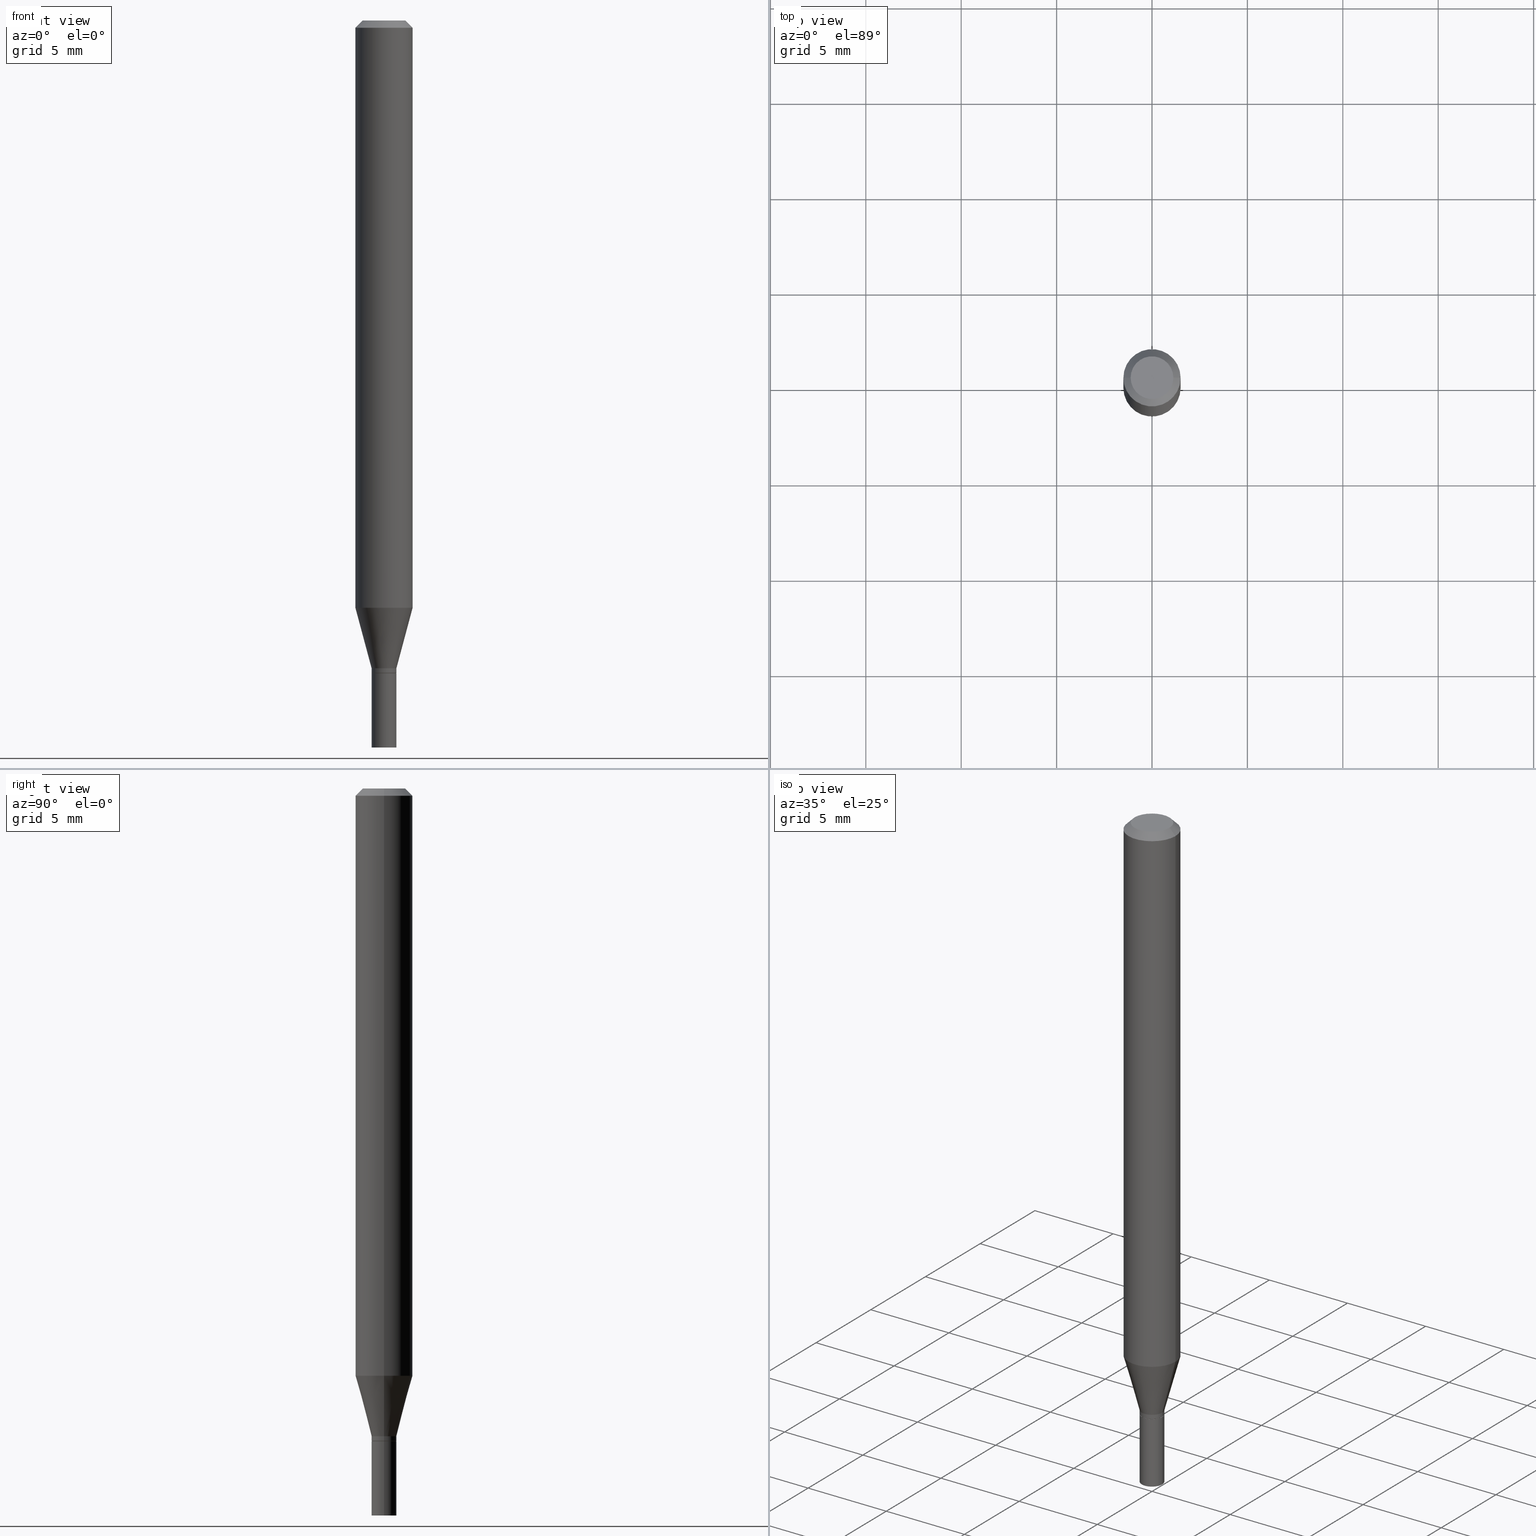
[diagram: canonical four-view strip — front | top / right | iso, engineering-drawing reading convention]
A machine part, canonical four-view strip (front | top / right | iso — engineering-drawing reading convention). The complete STEP part file that produces these views, byte-faithful:
ISO-10303-21;
HEADER;
FILE_DESCRIPTION (( 'STEP AP203' ),
    '1' );
FILE_NAME ('05066.STEP',
    '2024-03-14T17:41:15',
    ( '' ),
    ( '' ),
    'SwSTEP 2.0',
    'SolidWorks 2023',
    '' );
FILE_SCHEMA (( 'CONFIG_CONTROL_DESIGN' ));
ENDSEC;

DATA;
#1 = DIRECTION ( 'NONE',  ( 0.000000000000000000, 0.000000000000000000, 1.000000000000000000 ) ) ;
#2 = APPROVAL ( #341, 'UNSPECIFIED' ) ;
#3 = DIRECTION ( 'NONE',  ( -2.445468806185136597E-29, 3.491481338843145583E-15, 1.000000000000000000 ) ) ;
#4 = FACE_OUTER_BOUND ( 'NONE', #79, .T. ) ;
#5 = ORIENTED_EDGE ( 'NONE', *, *, #268, .F. ) ;
#6 =( NAMED_UNIT ( * ) SI_UNIT ( $, .STERADIAN. ) SOLID_ANGLE_UNIT ( ) );
#7 = CIRCLE ( 'NONE', #172, 0.05904999999999999832 ) ;
#8 = AXIS2_PLACEMENT_3D ( 'NONE', #177, #38, #175 ) ;
#9 = APPLICATION_CONTEXT ( 'configuration controlled 3d designs of mechanical parts and assemblies' ) ;
#10 =( NAMED_UNIT ( * ) PLANE_ANGLE_UNIT ( ) SI_UNIT ( $, .RADIAN. ) );
#11 = ORIENTED_EDGE ( 'NONE', *, *, #208, .T. ) ;
#12 = PERSON_AND_ORGANIZATION ( #344, #453 ) ;
#13 = DIRECTION ( 'NONE',  ( -2.445468806185136877E-29, 3.491481338843145188E-15, 1.000000000000000000 ) ) ;
#14 = SECURITY_CLASSIFICATION_LEVEL ( 'unclassified' ) ;
#15 = DIRECTION ( 'NONE',  ( 1.000000000000000000, -6.982962677686282488E-15, 0.000000000000000000 ) ) ;
#16 = APPLICATION_CONTEXT ( 'configuration controlled 3d designs of mechanical parts and assemblies' ) ;
#17 = AXIS2_PLACEMENT_3D ( 'NONE', #168, #306, #445 ) ;
#18 = DIRECTION ( 'NONE',  ( -2.445468806185136597E-29, 3.491481338843145583E-15, 1.000000000000000000 ) ) ;
#19 = ADVANCED_FACE ( 'NONE', ( #161 ), #59, .T. ) ;
#20 = VERTEX_POINT ( 'NONE', #257 ) ;
#21 = CYLINDRICAL_SURFACE ( 'NONE', #17, 0.02560000000000000470 ) ;
#22 = PLANE ( 'NONE',  #362 ) ;
#23 = AXIS2_PLACEMENT_3D ( 'NONE', #192, #299, #393 ) ;
#24 = CARTESIAN_POINT ( 'NONE',  ( 0.02559999999999991796, -4.845128653912631909E-15, -1.336500000000000021 ) ) ;
#25 = ORIENTED_EDGE ( 'NONE', *, *, #351, .T. ) ;
#26 = EDGE_CURVE ( 'NONE', #319, #460, #316, .T. ) ;
#27 = FACE_OUTER_BOUND ( 'NONE', #143, .T. ) ;
#28 = ORIENTED_EDGE ( 'NONE', *, *, #170, .T. ) ;
#29 = DIRECTION ( 'NONE',  ( -2.438088387897960049E-29, 3.491481338843145188E-15, 1.000000000000000000 ) ) ;
#30 = ORIENTED_EDGE ( 'NONE', *, *, #174, .T. ) ;
#31 = MANIFOLD_SOLID_BREP ( 'Body-Move/Copy2[2]', #157 ) ;
#32 = EDGE_CURVE ( 'NONE', #357, #259, #375, .T. ) ;
#33 = DESIGN_CONTEXT ( 'detailed design', #16, 'design' ) ;
#34 = CARTESIAN_POINT ( 'NONE',  ( 0.000000000000000000, 0.000000000000000000, 0.000000000000000000 ) ) ;
#35 = CIRCLE ( 'NONE', #214, 0.05904999999999999832 ) ;
#36 = EDGE_CURVE ( 'NONE', #390, #363, #266, .T. ) ;
#37 = EDGE_LOOP ( 'NONE', ( #420, #100 ) ) ;
#38 = DIRECTION ( 'NONE',  ( -2.438088387897960049E-29, 3.491481338843145188E-15, 1.000000000000000000 ) ) ;
#39 = DIRECTION ( 'NONE',  ( 1.000000000000000000, -6.982962677686263555E-15, 0.000000000000000000 ) ) ;
#40 = VERTEX_POINT ( 'NONE', #153 ) ;
#41 = APPROVAL ( #223, 'UNSPECIFIED' ) ;
#42 = AXIS2_PLACEMENT_3D ( 'NONE', #389, #71, #111 ) ;
#43 = APPLICATION_PROTOCOL_DEFINITION ( 'international standard', 'config_control_design', 1994, #16 ) ;
#44 = AXIS2_PLACEMENT_3D ( 'NONE', #293, #75, #189 ) ;
#45 = ADVANCED_BREP_SHAPE_REPRESENTATION ( '05066', ( #343, #31, #282 ), #190 ) ;
#46 = CARTESIAN_POINT ( 'NONE',  ( 3.668203209277704895E-29, -5.237222008264718177E-15, -1.500000000000000222 ) ) ;
#47 = ORIENTED_EDGE ( 'NONE', *, *, #73, .T. ) ;
#48 = DATE_AND_TIME ( #399, #421 ) ;
#49 = ORIENTED_EDGE ( 'NONE', *, *, #449, .F. ) ;
#50 = CIRCLE ( 'NONE', #308, 0.02559999999999992490 ) ;
#51 = DATE_TIME_ROLE ( 'classification_date' ) ;
#52 = LINE ( 'NONE', #301, #367 ) ;
#53 = EDGE_CURVE ( 'NONE', #84, #40, #7, .T. ) ;
#54 = SHAPE_DEFINITION_REPRESENTATION ( #373, #45 ) ;
#55 = CARTESIAN_POINT ( 'NONE',  ( 0.000000000000000000, 0.000000000000000000, 0.000000000000000000 ) ) ;
#56 = LOCAL_TIME ( 13, 41, 15.00000000000000000, #296 ) ;
#57 = ADVANCED_FACE ( 'NONE', ( #429 ), #254, .T. ) ;
#58 = DIRECTION ( 'NONE',  ( -1.000000000000000000, 6.982962677686265922E-15, -4.876176775795935793E-29 ) ) ;
#59 = CONICAL_SURFACE ( 'NONE', #23, 0.02559999999999991796, 0.2617993877991497409 ) ;
#60 = VECTOR ( 'NONE', #358, 39.37007874015748143 ) ;
#61 = FACE_OUTER_BOUND ( 'NONE', #433, .T. ) ;
#62 = CARTESIAN_POINT ( 'NONE',  ( -0.05904999999999999832, -1.721859827584131788E-15, -0.01499999999999999944 ) ) ;
#63 = CC_DESIGN_APPROVAL ( #2, ( #203 ) ) ;
#64 = DIRECTION ( 'NONE',  ( 2.445468806185136597E-29, -3.491481338843145583E-15, -1.000000000000000000 ) ) ;
#65 = ADVANCED_FACE ( 'NONE', ( #369 ), #227, .T. ) ;
#66 = CIRCLE ( 'NONE', #382, 0.04404999999999999888 ) ;
#67 = CARTESIAN_POINT ( 'NONE',  ( -0.02560000000000000470, -4.787351875153921393E-15, -1.500000000000000222 ) ) ;
#68 = EDGE_LOOP ( 'NONE', ( #25, #74 ) ) ;
#69 = DIRECTION ( 'NONE',  ( -2.445468806185136877E-29, 3.491481338843145188E-15, 1.000000000000000000 ) ) ;
#70 = LINE ( 'NONE', #276, #60 ) ;
#71 = DIRECTION ( 'NONE',  ( -2.445468806185136597E-29, 3.491481338843145583E-15, 1.000000000000000000 ) ) ;
#72 = ORIENTED_EDGE ( 'NONE', *, *, #32, .T. ) ;
#73 = EDGE_CURVE ( 'NONE', #460, #84, #466, .T. ) ;
#74 = ORIENTED_EDGE ( 'NONE', *, *, #304, .T. ) ;
#75 = DIRECTION ( 'NONE',  ( -2.445468806185136597E-29, 3.491481338843145583E-15, 1.000000000000000000 ) ) ;
#76 = DIRECTION ( 'NONE',  ( 1.000000000000000000, -6.982962677686282488E-15, 0.000000000000000000 ) ) ;
#77 = MECHANICAL_CONTEXT ( 'NONE', #9, 'mechanical' ) ;
#78 = AXIS2_PLACEMENT_3D ( 'NONE', #234, #377, #202 ) ;
#79 = EDGE_LOOP ( 'NONE', ( #314, #463, #49, #5 ) ) ;
#80 = CARTESIAN_POINT ( 'NONE',  ( 0.02560000000000000470, -5.415985852813487242E-15, -1.500000000000000222 ) ) ;
#81 = DIRECTION ( 'NONE',  ( -2.445468806185136597E-29, 3.491481338843145583E-15, 1.000000000000000000 ) ) ;
#82 = PERSON_AND_ORGANIZATION ( #344, #453 ) ;
#83 = DIRECTION ( 'NONE',  ( 2.445468806185136597E-29, -3.491481338843145583E-15, -1.000000000000000000 ) ) ;
#84 = VERTEX_POINT ( 'NONE', #62 ) ;
#85 = APPROVAL_ROLE ( '' ) ;
#86 = ORIENTED_EDGE ( 'NONE', *, *, #36, .F. ) ;
#87 = CONICAL_SURFACE ( 'NONE', #465, 0.02510000000000000078, 0.7853981633974739252 ) ;
#88 = CALENDAR_DATE ( 2024, 14, 3 ) ;
#89 = CARTESIAN_POINT ( 'NONE',  ( 3.292823747528287150E-29, -4.701279622752296071E-15, -1.346500000000000252 ) ) ;
#90 = ADVANCED_FACE ( 'NONE', ( #171 ), #444, .T. ) ;
#91 = LINE ( 'NONE', #443, #158 ) ;
#92 = LOCAL_TIME ( 13, 41, 15.00000000000000000, #197 ) ;
#93 = DIRECTION ( 'NONE',  ( 1.000000000000000000, -6.982962677686263555E-15, 0.000000000000000000 ) ) ;
#94 = CIRCLE ( 'NONE', #132, 0.02510000000000000078 ) ;
#95 = DIRECTION ( 'NONE',  ( 1.000000000000000000, -6.982962677686266711E-15, 0.000000000000000000 ) ) ;
#96 = CIRCLE ( 'NONE', #195, 0.02560000000000000470 ) ;
#97 = LINE ( 'NONE', #447, #149 ) ;
#98 = CC_DESIGN_PERSON_AND_ORGANIZATION_ASSIGNMENT ( #300, #261, ( #203 ) ) ;
#99 = CARTESIAN_POINT ( 'NONE',  ( 0.02559999999999992490, -4.878297726631642843E-15, -1.346000000000000307 ) ) ;
#100 = ORIENTED_EDGE ( 'NONE', *, *, #106, .T. ) ;
#101 = AXIS2_PLACEMENT_3D ( 'NONE', #267, #413, #93 ) ;
#102 = CONICAL_SURFACE ( 'NONE', #457, 0.02559999999999991796, 0.2617993877991497409 ) ;
#103 = CARTESIAN_POINT ( 'NONE',  ( 0.000000000000000000, 0.000000000000000000, 0.000000000000000000 ) ) ;
#104 = EDGE_CURVE ( 'NONE', #259, #357, #94, .T. ) ;
#105 = EDGE_LOOP ( 'NONE', ( #140, #30, #311, #325 ) ) ;
#106 = EDGE_CURVE ( 'NONE', #264, #145, #239, .T. ) ;
#107 = DIRECTION ( 'NONE',  ( -2.445468806185136597E-29, 3.491481338843145583E-15, 1.000000000000000000 ) ) ;
#108 = ORIENTED_EDGE ( 'NONE', *, *, #423, .T. ) ;
#109 = DIRECTION ( 'NONE',  ( 1.000000000000000000, -6.982962677686266711E-15, 4.876176775795936353E-29 ) ) ;
#110 = ORIENTED_EDGE ( 'NONE', *, *, #448, .F. ) ;
#111 = DIRECTION ( 'NONE',  ( 1.000000000000000000, -6.982962677686263555E-15, 0.000000000000000000 ) ) ;
#112 = ORIENTED_EDGE ( 'NONE', *, *, #106, .F. ) ;
#113 = PERSON_AND_ORGANIZATION ( #344, #453 ) ;
#114 = ORIENTED_EDGE ( 'NONE', *, *, #32, .F. ) ;
#115 = EDGE_CURVE ( 'NONE', #388, #460, #97, .T. ) ;
#116 = CARTESIAN_POINT ( 'NONE',  ( -0.05904999999999999832, -3.810922920551955991E-15, -1.211662900486820904 ) ) ;
#117 = ORIENTED_EDGE ( 'NONE', *, *, #410, .F. ) ;
#118 =( LENGTH_UNIT ( ) NAMED_UNIT ( * ) SI_UNIT ( $, .METRE. ) );
#119 = AXIS2_PLACEMENT_3D ( 'NONE', #103, #107, #144 ) ;
#120 = PERSON_AND_ORGANIZATION_ROLE ( 'creator' ) ;
#121 = CARTESIAN_POINT ( 'NONE',  ( 2.963083826752325828E-29, -4.230498406018294695E-15, -1.211662900486820904 ) ) ;
#122 = ORIENTED_EDGE ( 'NONE', *, *, #268, .T. ) ;
#123 = APPROVAL_DATE_TIME ( #404, #349 ) ;
#124 = DIRECTION ( 'NONE',  ( 1.000000000000000000, -6.982962677686249356E-15, 0.000000000000000000 ) ) ;
#125 = PRODUCT_DEFINITION ( 'UNKNOWN', '', #312, #33 ) ;
#126 = VECTOR ( 'NONE', #321, 39.37007874015748143 ) ;
#127 = CIRCLE ( 'NONE', #289, 0.02560000000000000470 ) ;
#128 = DIRECTION ( 'NONE',  ( 1.000000000000000000, -6.982962677686282488E-15, 0.000000000000000000 ) ) ;
#129 = FACE_OUTER_BOUND ( 'NONE', #68, .T. ) ;
#130 = AXIS2_PLACEMENT_3D ( 'NONE', #152, #218, #326 ) ;
#131 = DIRECTION ( 'NONE',  ( -2.445468806185136597E-29, 3.491481338843145583E-15, 1.000000000000000000 ) ) ;
#132 = AXIS2_PLACEMENT_3D ( 'NONE', #134, #194, #272 ) ;
#133 = EDGE_CURVE ( 'NONE', #363, #390, #50, .T. ) ;
#134 = CARTESIAN_POINT ( 'NONE',  ( 3.292823747528287150E-29, -4.701279622752296071E-15, -1.346500000000000252 ) ) ;
#135 = ADVANCED_FACE ( 'NONE', ( #378 ), #22, .F. ) ;
#136 = CYLINDRICAL_SURFACE ( 'NONE', #119, 0.02559999999999992143 ) ;
#137 = ORIENTED_EDGE ( 'NONE', *, *, #104, .T. ) ;
#138 = CARTESIAN_POINT ( 'NONE',  ( 2.963083826752325828E-29, -4.230498406018294695E-15, -1.211662900486820904 ) ) ;
#139 = CC_DESIGN_DATE_AND_TIME_ASSIGNMENT ( #402, #51, ( #203 ) ) ;
#140 = ORIENTED_EDGE ( 'NONE', *, *, #410, .T. ) ;
#141 = AXIS2_PLACEMENT_3D ( 'NONE', #283, #29, #244 ) ;
#142 = DIRECTION ( 'NONE',  ( -1.000000000000000000, 6.982962677686266711E-15, 0.000000000000000000 ) ) ;
#143 = EDGE_LOOP ( 'NONE', ( #250, #432, #287, #281 ) ) ;
#144 = DIRECTION ( 'NONE',  ( 1.000000000000000000, -6.982962677686266711E-15, 4.876176775795936353E-29 ) ) ;
#145 = VERTEX_POINT ( 'NONE', #407 ) ;
#146 = ORIENTED_EDGE ( 'NONE', *, *, #406, .T. ) ;
#147 = DIRECTION ( 'NONE',  ( 1.000000000000000000, -6.982962677686265922E-15, 4.819687581474398999E-29 ) ) ;
#148 = ORIENTED_EDGE ( 'NONE', *, *, #351, .F. ) ;
#149 = VECTOR ( 'NONE', #408, 39.37007874015748143 ) ;
#150 = ADVANCED_FACE ( 'NONE', ( #61 ), #87, .T. ) ;
#151 = CARTESIAN_POINT ( 'NONE',  ( 0.02510000000000000078, -4.876551985962222129E-15, -1.346500000000000252 ) ) ;
#152 = CARTESIAN_POINT ( 'NONE',  ( 3.268369059466435044E-29, -4.666364809363864422E-15, -1.336500000000000021 ) ) ;
#153 = CARTESIAN_POINT ( 'NONE',  ( 0.05904999999999999832, -4.647161662000212105E-16, -0.01499999999999999944 ) ) ;
#154 = APPROVAL_DATE_TIME ( #331, #41 ) ;
#155 = EDGE_LOOP ( 'NONE', ( #186, #243, #146, #201 ) ) ;
#156 = APPROVAL_ROLE ( '' ) ;
#157 = CLOSED_SHELL ( 'NONE', ( #425, #206, #286, #57, #19, #196, #397, #65, #229, #317, #150, #361 ) ) ;
#158 = VECTOR ( 'NONE', #305, 39.37007874015748143 ) ;
#159 = EDGE_LOOP ( 'NONE', ( #427, #386, #383, #112 ) ) ;
#160 = DIRECTION ( 'NONE',  ( 1.000000000000000000, 0.000000000000000000, 0.000000000000000000 ) ) ;
#161 = FACE_OUTER_BOUND ( 'NONE', #458, .T. ) ;
#162 = EDGE_LOOP ( 'NONE', ( #117, #110 ) ) ;
#163 = CARTESIAN_POINT ( 'NONE',  ( 3.268369059466435044E-29, -4.666364809363864422E-15, -1.336500000000000021 ) ) ;
#164 = COORDINATED_UNIVERSAL_TIME_OFFSET ( 5, 0, .BEHIND. ) ;
#165 = CARTESIAN_POINT ( 'NONE',  ( -0.05904999999999999832, 4.195754854663391478E-16, -2.904631170795521892E-30 ) ) ;
#166 = CONICAL_SURFACE ( 'NONE', #240, 0.02510000000000000078, 0.7853981633974739252 ) ;
#167 = DIRECTION ( 'NONE',  ( 1.000000000000000000, -6.982962677686249356E-15, 0.000000000000000000 ) ) ;
#168 = CARTESIAN_POINT ( 'NONE',  ( 0.000000000000000000, 0.000000000000000000, 0.000000000000000000 ) ) ;
#169 = CC_DESIGN_APPROVAL ( #41, ( #125 ) ) ;
#170 = EDGE_CURVE ( 'NONE', #357, #390, #52, .T. ) ;
#171 = FACE_OUTER_BOUND ( 'NONE', #105, .T. ) ;
#172 = AXIS2_PLACEMENT_3D ( 'NONE', #228, #290, #327 ) ;
#173 = CARTESIAN_POINT ( 'NONE',  ( 0.05904999999999999832, -4.574846268510561447E-16, -0.01499999999999999944 ) ) ;
#174 = EDGE_CURVE ( 'NONE', #394, #264, #372, .T. ) ;
#175 = DIRECTION ( 'NONE',  ( 1.000000000000000000, -6.982962677686265922E-15, 4.876176775795935793E-29 ) ) ;
#176 = ORIENTED_EDGE ( 'NONE', *, *, #221, .T. ) ;
#177 = CARTESIAN_POINT ( 'NONE',  ( 3.292823747528287150E-29, -4.701279622752296071E-15, -1.346500000000000252 ) ) ;
#178 = ORIENTED_EDGE ( 'NONE', *, *, #104, .F. ) ;
#179 = AXIS2_PLACEMENT_3D ( 'NONE', #121, #224, #297 ) ;
#180 = AXIS2_PLACEMENT_3D ( 'NONE', #278, #426, #147 ) ;
#181 = DIRECTION ( 'NONE',  ( -2.445468806185136597E-29, 3.491481338843145583E-15, 1.000000000000000000 ) ) ;
#182 = ORIENTED_EDGE ( 'NONE', *, *, #262, .F. ) ;
#183 = CARTESIAN_POINT ( 'NONE',  ( -0.02559999999999992490, -4.517634941728290020E-15, -1.346000000000000307 ) ) ;
#184 = EDGE_LOOP ( 'NONE', ( #182, #148, #11, #333 ) ) ;
#185 = DIRECTION ( 'NONE',  ( -1.000000000000000000, 6.982962677686266711E-15, 0.000000000000000000 ) ) ;
#186 = ORIENTED_EDGE ( 'NONE', *, *, #73, .F. ) ;
#187 = AXIS2_PLACEMENT_3D ( 'NONE', #352, #64, #142 ) ;
#188 = CC_DESIGN_PERSON_AND_ORGANIZATION_ASSIGNMENT ( #230, #265, ( #312 ) ) ;
#189 = DIRECTION ( 'NONE',  ( 1.000000000000000000, -6.982962677686266711E-15, 4.876176775795936353E-29 ) ) ;
#190 =( GEOMETRIC_REPRESENTATION_CONTEXT ( 3 ) GLOBAL_UNCERTAINTY_ASSIGNED_CONTEXT ( ( #320 ) ) GLOBAL_UNIT_ASSIGNED_CONTEXT ( ( #431, #10, #6 ) ) REPRESENTATION_CONTEXT ( 'NONE', 'WORKASPACE' ) );
#191 = DATE_TIME_ROLE ( 'creation_date' ) ;
#192 = CARTESIAN_POINT ( 'NONE',  ( 3.268369059466435044E-29, -4.666364809363864422E-15, -1.336500000000000021 ) ) ;
#193 = APPROVAL_DATE_TIME ( #371, #2 ) ;
#194 = DIRECTION ( 'NONE',  ( -2.445468806185136597E-29, 3.491481338843145583E-15, 1.000000000000000000 ) ) ;
#195 = AXIS2_PLACEMENT_3D ( 'NONE', #46, #332, #39 ) ;
#196 = ADVANCED_FACE ( 'NONE', ( #440 ), #102, .T. ) ;
#197 = COORDINATED_UNIVERSAL_TIME_OFFSET ( 5, 0, .BEHIND. ) ;
#198 = DIRECTION ( 'NONE',  ( -2.445468806185136597E-29, 3.491481338843145583E-15, 1.000000000000000000 ) ) ;
#199 = CARTESIAN_POINT ( 'NONE',  ( 3.268369059466435044E-29, -4.666364809363864422E-15, -1.336500000000000021 ) ) ;
#200 = VECTOR ( 'NONE', #387, 39.37007874015748143 ) ;
#201 = ORIENTED_EDGE ( 'NONE', *, *, #53, .F. ) ;
#202 = DIRECTION ( 'NONE',  ( -1.000000000000000000, 6.982962677686265922E-15, -4.876176775795935793E-29 ) ) ;
#203 = SECURITY_CLASSIFICATION ( '', '', #14 ) ;
#204 = DIRECTION ( 'NONE',  ( -2.445468806185136597E-29, 3.491481338843145583E-15, 1.000000000000000000 ) ) ;
#205 = DIRECTION ( 'NONE',  ( 1.000000000000000000, -6.982962677686273021E-15, 0.000000000000000000 ) ) ;
#206 = ADVANCED_FACE ( 'NONE', ( #405 ), #166, .T. ) ;
#207 = AXIS2_PLACEMENT_3D ( 'NONE', #400, #263, #76 ) ;
#208 = EDGE_CURVE ( 'NONE', #322, #84, #91, .T. ) ;
#209 = CARTESIAN_POINT ( 'NONE',  ( -0.02560000000000000470, -4.787351875153921393E-15, -1.346500000000000252 ) ) ;
#210 = VERTEX_POINT ( 'NONE', #232 ) ;
#211 = LINE ( 'NONE', #24, #434 ) ;
#212 = ORIENTED_EDGE ( 'NONE', *, *, #370, .T. ) ;
#213 = FACE_OUTER_BOUND ( 'NONE', #155, .T. ) ;
#214 = AXIS2_PLACEMENT_3D ( 'NONE', #138, #462, #205 ) ;
#215 = DIRECTION ( 'NONE',  ( 0.7071067811865553443, -7.319954787623282867E-15, -0.7071067811865396902 ) ) ;
#216 = EDGE_LOOP ( 'NONE', ( #137, #28, #455, #359 ) ) ;
#217 = CARTESIAN_POINT ( 'NONE',  ( 3.292823747528287150E-29, -4.701279622752296071E-15, -1.346500000000000252 ) ) ;
#218 = DIRECTION ( 'NONE',  ( -2.445468806185136597E-29, 3.491481338843145583E-15, 1.000000000000000000 ) ) ;
#219 = CARTESIAN_POINT ( 'NONE',  ( 3.291601013125194348E-29, -4.699533882082874567E-15, -1.346000000000000307 ) ) ;
#220 = ORIENTED_EDGE ( 'NONE', *, *, #246, .F. ) ;
#221 = EDGE_CURVE ( 'NONE', #388, #210, #222, .T. ) ;
#222 = CIRCLE ( 'NONE', #411, 0.02559999999999991796 ) ;
#223 = APPROVAL_STATUS ( 'not_yet_approved' ) ;
#224 = DIRECTION ( 'NONE',  ( -2.445468806185136597E-29, 3.491481338843145583E-15, 1.000000000000000000 ) ) ;
#225 = DIRECTION ( 'NONE',  ( 1.000000000000000000, -6.982962677686266711E-15, 4.876176775795936353E-29 ) ) ;
#226 = CALENDAR_DATE ( 2024, 14, 3 ) ;
#227 = CONICAL_SURFACE ( 'NONE', #356, 0.05904999999999999832, 0.7853981633974593812 ) ;
#228 = CARTESIAN_POINT ( 'NONE',  ( 3.668203209277705088E-31, -5.237222008264718399E-17, -0.01499999999999999944 ) ) ;
#229 = ADVANCED_FACE ( 'NONE', ( #129 ), #270, .F. ) ;
#230 = PERSON_AND_ORGANIZATION ( #344, #453 ) ;
#231 = CARTESIAN_POINT ( 'NONE',  ( 3.291601013125194348E-29, -4.699533882082874567E-15, -1.346000000000000307 ) ) ;
#232 = CARTESIAN_POINT ( 'NONE',  ( 0.02559999999999991796, -4.845128653912631909E-15, -1.336500000000000021 ) ) ;
#233 = ADVANCED_FACE ( 'NONE', ( #347 ), #21, .T. ) ;
#234 = CARTESIAN_POINT ( 'NONE',  ( 3.075995059520799729E-16, 0.04404999999999999888, -3.177616157090649282E-16 ) ) ;
#235 = AXIS2_PLACEMENT_3D ( 'NONE', #294, #81, #225 ) ;
#236 = DIRECTION ( 'NONE',  ( 1.000000000000000000, -6.982962677686284854E-15, 0.000000000000000000 ) ) ;
#237 = CARTESIAN_POINT ( 'NONE',  ( 3.292823747528287150E-29, -4.701279622752296071E-15, -1.346500000000000252 ) ) ;
#238 = DIRECTION ( 'NONE',  ( 0.2588190451025210725, 1.565188264969624137E-15, 0.9659258262890682012 ) ) ;
#239 = CIRCLE ( 'NONE', #101, 0.02560000000000000470 ) ;
#240 = AXIS2_PLACEMENT_3D ( 'NONE', #89, #342, #15 ) ;
#241 = ORIENTED_EDGE ( 'NONE', *, *, #391, .F. ) ;
#242 = CARTESIAN_POINT ( 'NONE',  ( -0.02559999999999992143, 1.818989403545850893E-16, -1.259247383105251935E-30 ) ) ;
#243 = ORIENTED_EDGE ( 'NONE', *, *, #309, .T. ) ;
#244 = DIRECTION ( 'NONE',  ( 1.000000000000000000, -6.982962677686265922E-15, 4.876176775795935793E-29 ) ) ;
#245 = ORIENTED_EDGE ( 'NONE', *, *, #36, .T. ) ;
#246 = EDGE_CURVE ( 'NONE', #40, #84, #295, .T. ) ;
#247 = CARTESIAN_POINT ( 'NONE',  ( -0.04404999999999999888, 3.337856159934028715E-16, -3.279237254660510174E-16 ) ) ;
#248 = ORIENTED_EDGE ( 'NONE', *, *, #115, .T. ) ;
#249 = APPLICATION_PROTOCOL_DEFINITION ( 'international standard', 'config_control_design', 1994, #9 ) ;
#250 = ORIENTED_EDGE ( 'NONE', *, *, #304, .F. ) ;
#251 = LENGTH_MEASURE_WITH_UNIT ( LENGTH_MEASURE( 0.02539999999999999897 ), #118 );
#252 = ORIENTED_EDGE ( 'NONE', *, *, #370, .F. ) ;
#253 = CC_DESIGN_PERSON_AND_ORGANIZATION_ASSIGNMENT ( #368, #338, ( #312 ) ) ;
#254 = CYLINDRICAL_SURFACE ( 'NONE', #235, 0.05904999999999999832 ) ;
#255 = VECTOR ( 'NONE', #215, 39.37007874015748143 ) ;
#256 = DIRECTION ( 'NONE',  ( 1.000000000000000000, -6.982962677686263555E-15, 0.000000000000000000 ) ) ;
#257 = CARTESIAN_POINT ( 'NONE',  ( 0.04404999999999999888, -3.798447818264465995E-16, -3.279237254660463336E-16 ) ) ;
#258 = COORDINATED_UNIVERSAL_TIME_OFFSET ( 5, 0, .BEHIND. ) ;
#259 = VERTEX_POINT ( 'NONE', #273 ) ;
#260 = LOCAL_TIME ( 13, 41, 15.00000000000000000, #442 ) ;
#261 = PERSON_AND_ORGANIZATION_ROLE ( 'classification_officer' ) ;
#262 = EDGE_CURVE ( 'NONE', #20, #40, #315, .T. ) ;
#263 = DIRECTION ( 'NONE',  ( -2.445468806185136597E-29, 3.491481338843145583E-15, 1.000000000000000000 ) ) ;
#264 = VERTEX_POINT ( 'NONE', #209 ) ;
#265 = PERSON_AND_ORGANIZATION_ROLE ( 'design_supplier' ) ;
#266 = CIRCLE ( 'NONE', #409, 0.02559999999999992490 ) ;
#267 = CARTESIAN_POINT ( 'NONE',  ( 3.292823747528287150E-29, -4.701279622752296071E-15, -1.346500000000000252 ) ) ;
#268 = EDGE_CURVE ( 'NONE', #363, #210, #70, .T. ) ;
#269 = DIRECTION ( 'NONE',  ( 2.438088387897960049E-29, -3.491481338843145188E-15, -1.000000000000000000 ) ) ;
#270 = PLANE ( 'NONE',  #78 ) ;
#271 = DIRECTION ( 'NONE',  ( 1.000000000000000000, -6.982962677686267499E-15, 4.876176775795935232E-29 ) ) ;
#272 = DIRECTION ( 'NONE',  ( 1.000000000000000000, -6.982962677686282488E-15, 0.000000000000000000 ) ) ;
#273 = CARTESIAN_POINT ( 'NONE',  ( 0.02510000000000000078, -4.876551985962222129E-15, -1.346500000000000252 ) ) ;
#274 = EDGE_CURVE ( 'NONE', #451, #145, #310, .T. ) ;
#275 = ORIENTED_EDGE ( 'NONE', *, *, #449, .T. ) ;
#276 = CARTESIAN_POINT ( 'NONE',  ( 0.02559999999999992143, -1.787638445487678819E-16, 1.248301254603755838E-30 ) ) ;
#277 = ORIENTED_EDGE ( 'NONE', *, *, #115, .F. ) ;
#278 = CARTESIAN_POINT ( 'NONE',  ( 8.019272414352406998E-45, -1.144939568028632061E-30, -3.279237254660487495E-16 ) ) ;
#279 = ORIENTED_EDGE ( 'NONE', *, *, #26, .F. ) ;
#280 = LINE ( 'NONE', #242, #345 ) ;
#281 = ORIENTED_EDGE ( 'NONE', *, *, #208, .F. ) ;
#282 = AXIS2_PLACEMENT_3D ( 'NONE', #365, #1, #160 ) ;
#283 = CARTESIAN_POINT ( 'NONE',  ( 3.576687321579069994E-29, -5.368277968210015545E-15, -1.500000000000000222 ) ) ;
#284 = AXIS2_PLACEMENT_3D ( 'NONE', #55, #204, #271 ) ;
#285 = DIRECTION ( 'NONE',  ( 0.7071067811865656694, -2.468850131082446387E-15, 0.7071067811865294761 ) ) ;
#286 = ADVANCED_FACE ( 'NONE', ( #27 ), #318, .T. ) ;
#287 = ORIENTED_EDGE ( 'NONE', *, *, #246, .T. ) ;
#288 = DIMENSIONAL_EXPONENTS ( 1.000000000000000000, 0.000000000000000000, 0.000000000000000000, 0.000000000000000000, 0.000000000000000000, 0.000000000000000000, 0.000000000000000000 ) ;
#289 = AXIS2_PLACEMENT_3D ( 'NONE', #217, #360, #256 ) ;
#290 = DIRECTION ( 'NONE',  ( -2.445468806185136597E-29, 3.491481338843145583E-15, 1.000000000000000000 ) ) ;
#291 = ORIENTED_EDGE ( 'NONE', *, *, #26, .T. ) ;
#292 = APPROVAL_PERSON_ORGANIZATION ( #298, #349, #435 ) ;
#293 = CARTESIAN_POINT ( 'NONE',  ( 0.000000000000000000, 0.000000000000000000, 0.000000000000000000 ) ) ;
#294 = CARTESIAN_POINT ( 'NONE',  ( 0.000000000000000000, 0.000000000000000000, 0.000000000000000000 ) ) ;
#295 = CIRCLE ( 'NONE', #417, 0.05904999999999999832 ) ;
#296 = COORDINATED_UNIVERSAL_TIME_OFFSET ( 5, 0, .BEHIND. ) ;
#297 = DIRECTION ( 'NONE',  ( 1.000000000000000000, -6.982962677686273021E-15, 0.000000000000000000 ) ) ;
#298 = PERSON_AND_ORGANIZATION ( #344, #453 ) ;
#299 = DIRECTION ( 'NONE',  ( -2.445468806185136597E-29, 3.491481338843145583E-15, 1.000000000000000000 ) ) ;
#300 = PERSON_AND_ORGANIZATION ( #344, #453 ) ;
#301 = CARTESIAN_POINT ( 'NONE',  ( -0.02510000000000000078, -4.522933396076511633E-15, -1.346500000000000252 ) ) ;
#302 = CALENDAR_DATE ( 2024, 14, 3 ) ;
#303 = DIRECTION ( 'NONE',  ( -2.445468806185136877E-29, 3.491481338843145188E-15, 1.000000000000000000 ) ) ;
#304 = EDGE_CURVE ( 'NONE', #20, #322, #328, .T. ) ;
#305 = DIRECTION ( 'NONE',  ( -0.7071067811865553443, 2.468850131082339102E-15, -0.7071067811865396902 ) ) ;
#306 = DIRECTION ( 'NONE',  ( -2.445468806185136597E-29, 3.491481338843145583E-15, 1.000000000000000000 ) ) ;
#307 = DIRECTION ( 'NONE',  ( -2.445468806185136597E-29, 3.491481338843145583E-15, 1.000000000000000000 ) ) ;
#308 = AXIS2_PLACEMENT_3D ( 'NONE', #231, #18, #236 ) ;
#309 = EDGE_CURVE ( 'NONE', #460, #319, #35, .T. ) ;
#310 = LINE ( 'NONE', #313, #200 ) ;
#311 = ORIENTED_EDGE ( 'NONE', *, *, #439, .F. ) ;
#312 = PRODUCT_DEFINITION_FORMATION_WITH_SPECIFIED_SOURCE ( 'ANY', '', #452, .NOT_KNOWN. ) ;
#313 = CARTESIAN_POINT ( 'NONE',  ( 0.02560000000000000470, -1.787638445487684735E-16, 1.248301254603759692E-30 ) ) ;
#314 = ORIENTED_EDGE ( 'NONE', *, *, #133, .T. ) ;
#315 = LINE ( 'NONE', #173, #255 ) ;
#316 = CIRCLE ( 'NONE', #179, 0.05904999999999999832 ) ;
#317 = ADVANCED_FACE ( 'NONE', ( #456 ), #450, .F. ) ;
#318 = CONICAL_SURFACE ( 'NONE', #187, 0.05904999999999999832, 0.7853981633974593812 ) ;
#319 = VERTEX_POINT ( 'NONE', #385 ) ;
#320 = UNCERTAINTY_MEASURE_WITH_UNIT (LENGTH_MEASURE( 1.000000000000000082E-05 ), #431, 'distance_accuracy_value', 'NONE');
#321 = DIRECTION ( 'NONE',  ( -2.445468806185136877E-29, 3.491481338843145188E-15, 1.000000000000000000 ) ) ;
#322 = VERTEX_POINT ( 'NONE', #247 ) ;
#323 = LINE ( 'NONE', #422, #126 ) ;
#324 = CC_DESIGN_SECURITY_CLASSIFICATION ( #203, ( #312 ) ) ;
#325 = ORIENTED_EDGE ( 'NONE', *, *, #274, .F. ) ;
#326 = DIRECTION ( 'NONE',  ( 1.000000000000000000, -6.982962677686249356E-15, 0.000000000000000000 ) ) ;
#327 = DIRECTION ( 'NONE',  ( 1.000000000000000000, -6.982962677686266711E-15, 0.000000000000000000 ) ) ;
#328 = CIRCLE ( 'NONE', #180, 0.04404999999999999888 ) ;
#329 = PERSON_AND_ORGANIZATION ( #344, #453 ) ;
#330 = ORIENTED_EDGE ( 'NONE', *, *, #170, .F. ) ;
#331 = DATE_AND_TIME ( #364, #56 ) ;
#332 = DIRECTION ( 'NONE',  ( -2.445468806185136597E-29, 3.491481338843145583E-15, 1.000000000000000000 ) ) ;
#333 = ORIENTED_EDGE ( 'NONE', *, *, #53, .T. ) ;
#334 = CLOSED_SHELL ( 'NONE', ( #90, #395, #233, #135 ) ) ;
#335 = APPROVAL_STATUS ( 'not_yet_approved' ) ;
#336 = EDGE_LOOP ( 'NONE', ( #178, #114 ) ) ;
#337 = VECTOR ( 'NONE', #285, 39.37007874015748143 ) ;
#338 = PERSON_AND_ORGANIZATION_ROLE ( 'creator' ) ;
#339 = DIRECTION ( 'NONE',  ( -0.7071067811865656694, 7.493145998870420424E-15, 0.7071067811865294761 ) ) ;
#340 = CC_DESIGN_DATE_AND_TIME_ASSIGNMENT ( #48, #191, ( #125 ) ) ;
#341 = APPROVAL_STATUS ( 'not_yet_approved' ) ;
#342 = DIRECTION ( 'NONE',  ( -2.445468806185136597E-29, 3.491481338843145583E-15, 1.000000000000000000 ) ) ;
#343 = MANIFOLD_SOLID_BREP ( 'Body-Move/Copy2[1]', #334 ) ;
#344 = PERSON ( 'UNSPECIFIED', 'UNSPECIFIED', 'UNSPECIFIED', ('UNSPECIFIED'), ('UNSPECIFIED'), ('UNSPECIFIED') ) ;
#345 = VECTOR ( 'NONE', #69, 39.37007874015748143 ) ;
#346 = DIRECTION ( 'NONE',  ( -2.445468806185136597E-29, 3.491481338843145583E-15, 1.000000000000000000 ) ) ;
#347 = FACE_OUTER_BOUND ( 'NONE', #159, .T. ) ;
#348 = CARTESIAN_POINT ( 'NONE',  ( 1.787638445488013838E-16, 0.02559999999999530360, -1.346500000000000252 ) ) ;
#349 = APPROVAL ( #335, 'UNSPECIFIED' ) ;
#350 = DIRECTION ( 'NONE',  ( 1.000000000000000000, -6.982962677686265922E-15, 4.819687581474398999E-29 ) ) ;
#351 = EDGE_CURVE ( 'NONE', #322, #20, #66, .T. ) ;
#352 = CARTESIAN_POINT ( 'NONE',  ( 3.668203209277705088E-31, -5.237222008264718399E-17, -0.01499999999999999944 ) ) ;
#353 = ORIENTED_EDGE ( 'NONE', *, *, #309, .F. ) ;
#354 = PLANE ( 'NONE',  #141 ) ;
#355 = CYLINDRICAL_SURFACE ( 'NONE', #396, 0.05904999999999999832 ) ;
#356 = AXIS2_PLACEMENT_3D ( 'NONE', #366, #83, #185 ) ;
#357 = VERTEX_POINT ( 'NONE', #416 ) ;
#358 = DIRECTION ( 'NONE',  ( -2.445468806185136877E-29, 3.491481338843145188E-15, 1.000000000000000000 ) ) ;
#359 = ORIENTED_EDGE ( 'NONE', *, *, #423, .F. ) ;
#360 = DIRECTION ( 'NONE',  ( -2.445468806185136597E-29, 3.491481338843145583E-15, 1.000000000000000000 ) ) ;
#361 = ADVANCED_FACE ( 'NONE', ( #414 ), #136, .T. ) ;
#362 = AXIS2_PLACEMENT_3D ( 'NONE', #348, #269, #58 ) ;
#363 = VERTEX_POINT ( 'NONE', #99 ) ;
#364 = CALENDAR_DATE ( 2024, 14, 3 ) ;
#365 = CARTESIAN_POINT ( 'NONE',  ( 0.000000000000000000, 0.000000000000000000, 0.000000000000000000 ) ) ;
#366 = CARTESIAN_POINT ( 'NONE',  ( 3.668203209277705088E-31, -5.237222008264718399E-17, -0.01499999999999999944 ) ) ;
#367 = VECTOR ( 'NONE', #339, 39.37007874015748143 ) ;
#368 = PERSON_AND_ORGANIZATION ( #344, #453 ) ;
#369 = FACE_OUTER_BOUND ( 'NONE', #184, .T. ) ;
#370 = EDGE_CURVE ( 'NONE', #210, #319, #211, .T. ) ;
#371 = DATE_AND_TIME ( #226, #260 ) ;
#372 = LINE ( 'NONE', #374, #376 ) ;
#373 = PRODUCT_DEFINITION_SHAPE ( 'NONE', 'NONE',  #125 ) ;
#374 = CARTESIAN_POINT ( 'NONE',  ( -0.02560000000000000470, 1.818989403545856810E-16, -1.259247383105256139E-30 ) ) ;
#375 = CIRCLE ( 'NONE', #207, 0.02510000000000000078 ) ;
#376 = VECTOR ( 'NONE', #13, 39.37007874015748143 ) ;
#377 = DIRECTION ( 'NONE',  ( 2.438088387897960049E-29, -3.491481338843145188E-15, -1.000000000000000000 ) ) ;
#378 = FACE_OUTER_BOUND ( 'NONE', #37, .T. ) ;
#379 = CIRCLE ( 'NONE', #130, 0.02559999999999991796 ) ;
#380 = LINE ( 'NONE', #151, #337 ) ;
#381 = CARTESIAN_POINT ( 'NONE',  ( -0.02559999999999991796, -4.147694394780617933E-15, -1.336500000000000021 ) ) ;
#382 = AXIS2_PLACEMENT_3D ( 'NONE', #459, #419, #350 ) ;
#383 = ORIENTED_EDGE ( 'NONE', *, *, #274, .T. ) ;
#384 = PRODUCT_RELATED_PRODUCT_CATEGORY ( 'detail', '', ( #452 ) ) ;
#385 = CARTESIAN_POINT ( 'NONE',  ( 0.05904999999999999832, -4.642842352135668037E-15, -1.211662900486820904 ) ) ;
#386 = ORIENTED_EDGE ( 'NONE', *, *, #448, .T. ) ;
#387 = DIRECTION ( 'NONE',  ( -2.445468806185136877E-29, 3.491481338843145188E-15, 1.000000000000000000 ) ) ;
#388 = VERTEX_POINT ( 'NONE', #381 ) ;
#389 = CARTESIAN_POINT ( 'NONE',  ( 3.668203209277704895E-29, -5.237222008264718177E-15, -1.500000000000000222 ) ) ;
#390 = VERTEX_POINT ( 'NONE', #183 ) ;
#391 = EDGE_CURVE ( 'NONE', #390, #388, #280, .T. ) ;
#392 = PERSON_AND_ORGANIZATION_ROLE ( 'design_owner' ) ;
#393 = DIRECTION ( 'NONE',  ( 1.000000000000000000, -6.982962677686249356E-15, 0.000000000000000000 ) ) ;
#394 = VERTEX_POINT ( 'NONE', #67 ) ;
#395 = ADVANCED_FACE ( 'NONE', ( #454 ), #354, .F. ) ;
#396 = AXIS2_PLACEMENT_3D ( 'NONE', #34, #181, #109 ) ;
#397 = ADVANCED_FACE ( 'NONE', ( #213 ), #355, .T. ) ;
#398 = ORIENTED_EDGE ( 'NONE', *, *, #406, .F. ) ;
#399 = CALENDAR_DATE ( 2024, 14, 3 ) ;
#400 = CARTESIAN_POINT ( 'NONE',  ( 3.292823747528287150E-29, -4.701279622752296071E-15, -1.346500000000000252 ) ) ;
#401 = CC_DESIGN_APPROVAL ( #349, ( #312 ) ) ;
#402 = DATE_AND_TIME ( #88, #92 ) ;
#403 = DIRECTION ( 'NONE',  ( 1.000000000000000000, -6.982962677686284854E-15, 0.000000000000000000 ) ) ;
#404 = DATE_AND_TIME ( #302, #437 ) ;
#405 = FACE_OUTER_BOUND ( 'NONE', #216, .T. ) ;
#406 = EDGE_CURVE ( 'NONE', #319, #40, #323, .T. ) ;
#407 = CARTESIAN_POINT ( 'NONE',  ( 0.02560000000000000470, -4.880043467301064347E-15, -1.346500000000000252 ) ) ;
#408 = DIRECTION ( 'NONE',  ( -0.2588190451025210725, 5.211531920934548675E-15, 0.9659258262890682012 ) ) ;
#409 = AXIS2_PLACEMENT_3D ( 'NONE', #219, #3, #403 ) ;
#410 = EDGE_CURVE ( 'NONE', #451, #394, #441, .T. ) ;
#411 = AXIS2_PLACEMENT_3D ( 'NONE', #199, #346, #167 ) ;
#412 = CARTESIAN_POINT ( 'NONE',  ( 3.668203209277705088E-31, -5.237222008264718399E-17, -0.01499999999999999944 ) ) ;
#413 = DIRECTION ( 'NONE',  ( -2.445468806185136597E-29, 3.491481338843145583E-15, 1.000000000000000000 ) ) ;
#414 = FACE_OUTER_BOUND ( 'NONE', #424, .T. ) ;
#415 = CC_DESIGN_PERSON_AND_ORGANIZATION_ASSIGNMENT ( #82, #120, ( #125 ) ) ;
#416 = CARTESIAN_POINT ( 'NONE',  ( -0.02510000000000000078, -4.520284168902400432E-15, -1.346500000000000252 ) ) ;
#417 = AXIS2_PLACEMENT_3D ( 'NONE', #412, #131, #95 ) ;
#418 = EDGE_LOOP ( 'NONE', ( #277, #176, #212, #353 ) ) ;
#419 = DIRECTION ( 'NONE',  ( -2.445468806185136597E-29, 3.491481338843145583E-15, 1.000000000000000000 ) ) ;
#420 = ORIENTED_EDGE ( 'NONE', *, *, #439, .T. ) ;
#421 = LOCAL_TIME ( 13, 41, 15.00000000000000000, #258 ) ;
#422 = CARTESIAN_POINT ( 'NONE',  ( 0.05904999999999999832, -4.123439461173740327E-16, 2.879382386107500220E-30 ) ) ;
#423 = EDGE_CURVE ( 'NONE', #259, #363, #380, .T. ) ;
#424 = EDGE_LOOP ( 'NONE', ( #241, #245, #122, #464 ) ) ;
#425 = ADVANCED_FACE ( 'NONE', ( #4 ), #428, .T. ) ;
#426 = DIRECTION ( 'NONE',  ( -2.445468806185136597E-29, 3.491481338843145583E-15, 1.000000000000000000 ) ) ;
#427 = ORIENTED_EDGE ( 'NONE', *, *, #174, .F. ) ;
#428 = CYLINDRICAL_SURFACE ( 'NONE', #44, 0.02559999999999992143 ) ;
#429 = FACE_OUTER_BOUND ( 'NONE', #436, .T. ) ;
#430 = CC_DESIGN_PERSON_AND_ORGANIZATION_ASSIGNMENT ( #113, #392, ( #452 ) ) ;
#431 =( CONVERSION_BASED_UNIT ( 'INCH', #251 ) LENGTH_UNIT ( ) NAMED_UNIT ( #288 ) );
#432 = ORIENTED_EDGE ( 'NONE', *, *, #262, .T. ) ;
#433 = EDGE_LOOP ( 'NONE', ( #330, #72, #108, #86 ) ) ;
#434 = VECTOR ( 'NONE', #238, 39.37007874015748143 ) ;
#435 = APPROVAL_ROLE ( '' ) ;
#436 = EDGE_LOOP ( 'NONE', ( #291, #47, #220, #398 ) ) ;
#437 = LOCAL_TIME ( 13, 41, 15.00000000000000000, #164 ) ;
#438 = APPROVAL_PERSON_ORGANIZATION ( #329, #41, #156 ) ;
#439 = EDGE_CURVE ( 'NONE', #145, #264, #127, .T. ) ;
#440 = FACE_OUTER_BOUND ( 'NONE', #418, .T. ) ;
#441 = CIRCLE ( 'NONE', #42, 0.02560000000000000470 ) ;
#442 = COORDINATED_UNIVERSAL_TIME_OFFSET ( 5, 0, .BEHIND. ) ;
#443 = CARTESIAN_POINT ( 'NONE',  ( -0.05904999999999999832, 3.599717260347268549E-16, -0.01499999999999999944 ) ) ;
#444 = CYLINDRICAL_SURFACE ( 'NONE', #284, 0.02560000000000000470 ) ;
#445 = DIRECTION ( 'NONE',  ( 1.000000000000000000, -6.982962677686267499E-15, 4.876176775795935232E-29 ) ) ;
#446 = VECTOR ( 'NONE', #303, 39.37007874015748143 ) ;
#447 = CARTESIAN_POINT ( 'NONE',  ( -0.02559999999999991796, -4.484465869009279875E-15, -1.336500000000000021 ) ) ;
#448 = EDGE_CURVE ( 'NONE', #394, #451, #96, .T. ) ;
#449 = EDGE_CURVE ( 'NONE', #210, #388, #379, .T. ) ;
#450 = PLANE ( 'NONE',  #8 ) ;
#451 = VERTEX_POINT ( 'NONE', #80 ) ;
#452 = PRODUCT ( '05066', '05066', '', ( #77 ) ) ;
#453 = ORGANIZATION ( 'UNSPECIFIED', 'UNSPECIFIED', '' ) ;
#454 = FACE_OUTER_BOUND ( 'NONE', #162, .T. ) ;
#455 = ORIENTED_EDGE ( 'NONE', *, *, #133, .F. ) ;
#456 = FACE_OUTER_BOUND ( 'NONE', #336, .T. ) ;
#457 = AXIS2_PLACEMENT_3D ( 'NONE', #163, #198, #124 ) ;
#458 = EDGE_LOOP ( 'NONE', ( #275, #248, #279, #252 ) ) ;
#459 = CARTESIAN_POINT ( 'NONE',  ( 8.019272414352406998E-45, -1.144939568028632061E-30, -3.279237254660487495E-16 ) ) ;
#460 = VERTEX_POINT ( 'NONE', #116 ) ;
#461 = APPROVAL_PERSON_ORGANIZATION ( #12, #2, #85 ) ;
#462 = DIRECTION ( 'NONE',  ( -2.445468806185136597E-29, 3.491481338843145583E-15, 1.000000000000000000 ) ) ;
#463 = ORIENTED_EDGE ( 'NONE', *, *, #391, .T. ) ;
#464 = ORIENTED_EDGE ( 'NONE', *, *, #221, .F. ) ;
#465 = AXIS2_PLACEMENT_3D ( 'NONE', #237, #307, #128 ) ;
#466 = LINE ( 'NONE', #165, #446 ) ;
ENDSEC;
END-ISO-10303-21;
